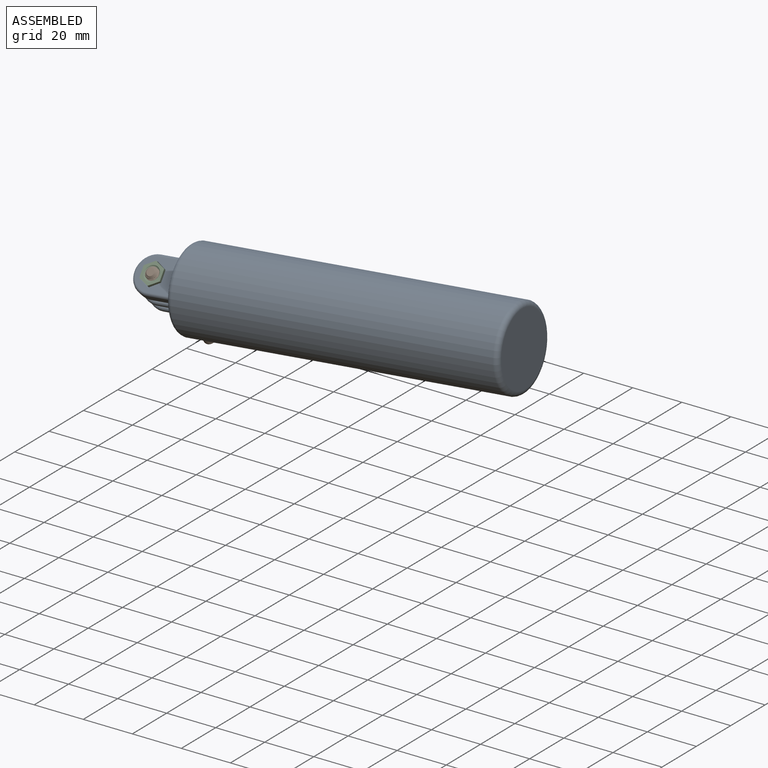
[diagram: assembled view]
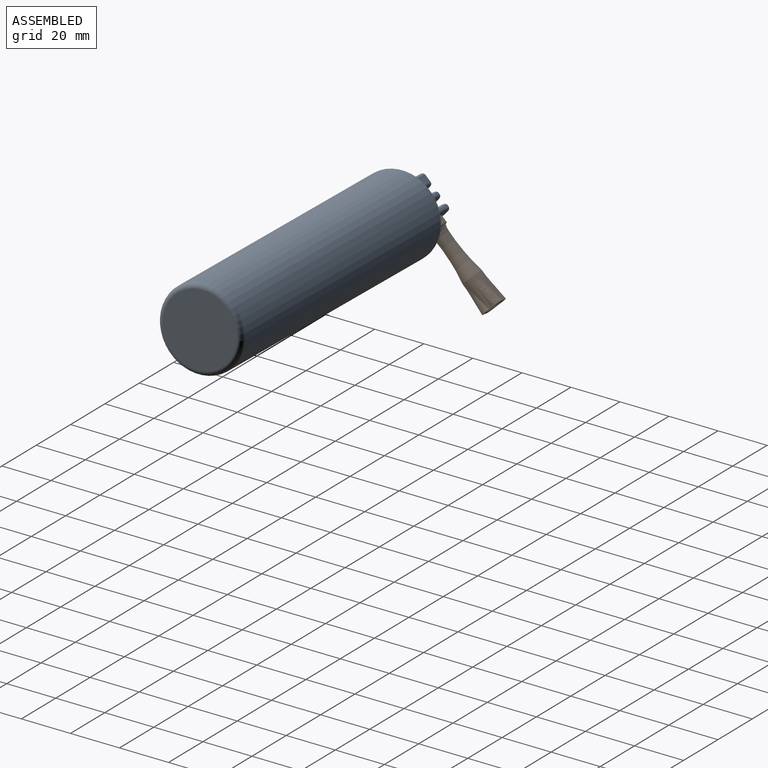
[diagram: assembled view, second angle]
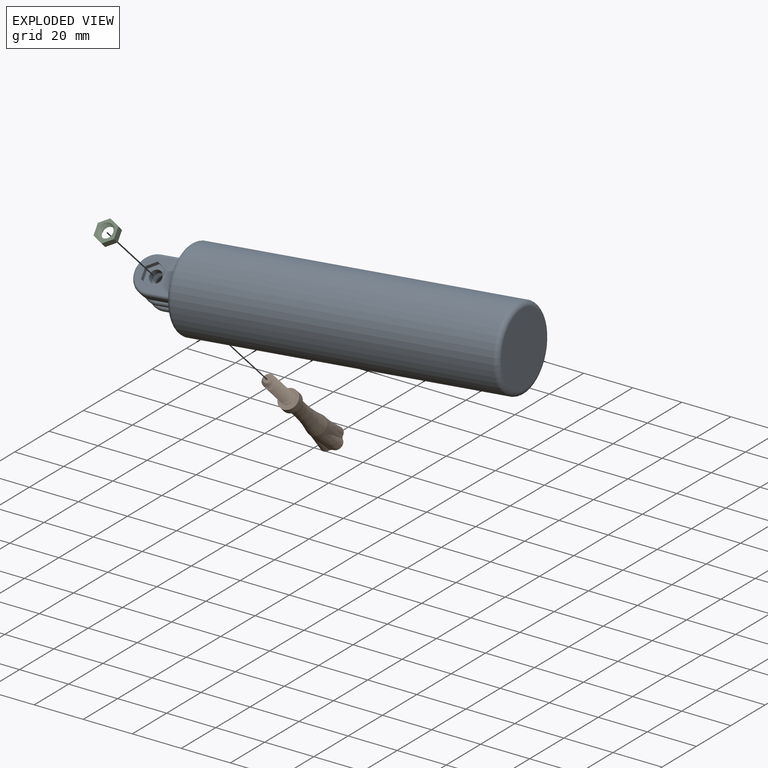
[diagram: exploded view]
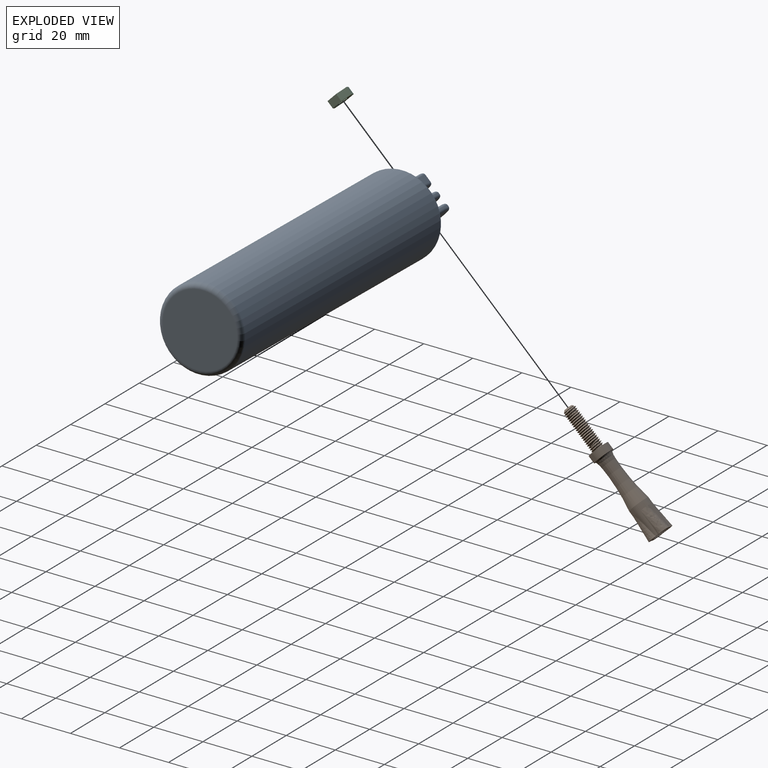
[diagram: exploded view, second angle]
ASSEMBLY  parts=3 mates=2
PART A: 80 faces, bbox 35.7x35.7x149.7 mm
  f0: plane 16.05x13.24mm, normal (1,0,0), area 133.3mm2, adj f19,f64,f65,f66,f68,f69,f70,f71
  f1: cylinder r=2.52mm len=5.05mm, axis (1,0,0), area 41.2mm2, adj f74,f79
  f2: cylinder r=16.5mm len=126mm, axis (0,0,-1), area 13062.7mm2, adj f27,f28
  f3: plane 29x29mm, normal (0,0,1), area 291.9mm2, adj f19,f20,f22,f24,f28
  f4: plane 29x29mm, normal (0,0,-1), area 660.5mm2, adj f27
  f5: plane 9.43x0.54mm, normal (0,-1,0), area 5.1mm2, adj f16,f22,f39,f44
  f6: plane 16.05x13.24mm, normal (1,0,0), area 170.4mm2, adj f26,f44,f45,f46,f75
  f7: plane 9.43x0.54mm, normal (0,1,0), area 5.1mm2, adj f16,f20,f41,f46
  f8: plane 16.05x13.24mm, normal (-1,0,0), area 170.4mm2, adj f24,f39,f40,f41,f76
  f9: plane 16.05x13.24mm, normal (-1,0,0), area 170.4mm2, adj f25,f49,f50,f51,f77
  f10: plane 9.43x0.54mm, normal (0,-1,0), area 5.1mm2, adj f17,f22,f49,f54
  f11: plane 16.05x13.24mm, normal (1,0,0), area 170.4mm2, adj f23,f54,f55,f56,f78
  f12: plane 9.43x0.54mm, normal (0,1,0), area 5.1mm2, adj f17,f20,f51,f56
  f13: plane 16.05x13.24mm, normal (-1,0,0), area 170.4mm2, adj f21,f59,f60,f61,f79
  f14: plane 9.43x3mm, normal (0,-1,0), area 28.3mm2, adj f18,f22,f59,f64
  f15: plane 9.43x3mm, normal (0,1,0), area 28.3mm2, adj f18,f20,f61,f66
  f16: cylinder r=7.62mm len=15.24mm, axis (-1,0,0), area 12.9mm2, adj f5,f7,f40,f45
  f17: cylinder r=7.62mm len=15.24mm, axis (1,0,0), area 12.9mm2, adj f10,f12,f50,f55
  f18: cylinder r=7.62mm len=15.24mm, axis (1,0,0), area 71.8mm2, adj f14,f15,f60,f65
  f19: cylinder r=2mm len=19.24mm, axis (0,1,0), area 48.4mm2, adj f0,f3,f63,f67
  f20: cylinder r=2mm len=19.16mm, axis (-1,0,0), area 32.7mm2, adj f3,f7,f12,f15,f42,f47,f52,f57
  f21: cylinder r=2mm len=17.05mm, axis (0,-1,0), area 36.3mm2, adj f13,f23,f58,f62
  f22: cylinder r=2mm len=19.16mm, axis (1,0,0), area 32.7mm2, adj f3,f5,f10,f14,f38,f43,f48,f53
  f23: cylinder r=2mm len=17.05mm, axis (0,1,0), area 36.3mm2, adj f11,f21,f53,f57
  f24: cylinder r=2mm len=19.24mm, axis (0,-1,0), area 48.4mm2, adj f3,f8,f38,f42
  f25: cylinder r=2mm len=17.05mm, axis (0,-1,0), area 36.3mm2, adj f9,f26,f48,f52
  f26: cylinder r=2mm len=17.05mm, axis (0,1,0), area 36.3mm2, adj f6,f25,f43,f47
  f27: torus R=14.5mm, axis (0,0,1), area 311.4mm2, adj f2,f4
  f28: torus R=14.5mm, axis (0,0,1), area 311.4mm2, adj f2,f3
  f29: cylinder r=2.52mm len=5.05mm, axis (1,0,0), area 34mm2, adj f77,f78
  f30: cylinder r=2.52mm len=5.05mm, axis (1,0,0), area 34mm2, adj f75,f76
  f31: plane 4.59x1.8mm, normal (0,0,-1), area 8.3mm2, adj f32,f36,f37,f71
  f32: plane 3.92x2.39mm, normal (0,0.85,-0.52), area 8.3mm2, adj f31,f33,f37,f69
  f33: plane 3.92x2.39mm, normal (0,0.85,0.52), area 8.3mm2, adj f32,f34,f37,f68
  f34: plane 4.59x1.8mm, normal (0,0,1), area 8.3mm2, adj f33,f35,f37,f70
  f35: plane 3.92x2.39mm, normal (0,-0.85,0.52), area 8.3mm2, adj f34,f36,f37,f72
  f36: plane 3.92x2.39mm, normal (0,-0.85,-0.52), area 8.3mm2, adj f31,f35,f37,f73
  f37: plane 9.37x7.84mm, normal (1,0,0), area 31.4mm2, adj f31,f32,f33,f34,f35,f36,f74
  f38: bspline ~3x3mm, area 2.1mm2, adj f22,f24,f39
  f39: cylinder r=1mm len=9.43mm, axis (0,0,-1), area 14.8mm2, adj f5,f8,f38,f40
  f40: torus R=6.62mm, axis (1,0,0), area 35.8mm2, adj f8,f16,f39,f41
  f41: cylinder r=1mm len=9.43mm, axis (0,0,1), area 14.8mm2, adj f7,f8,f40,f42
  f42: bspline ~3x3mm, area 2.1mm2, adj f20,f24,f41
  f43: bspline ~2.67x2.67mm, area 3.4mm2, adj f22,f26,f44,f48
  f44: cylinder r=1mm len=9.43mm, axis (0,0,-1), area 14.8mm2, adj f5,f6,f43,f45
  f45: torus R=6.62mm, axis (-1,0,0), area 35.8mm2, adj f6,f16,f44,f46
  f46: cylinder r=1mm len=9.43mm, axis (0,0,1), area 14.8mm2, adj f6,f7,f45,f47
  f47: bspline ~2.67x2.67mm, area 3.4mm2, adj f20,f26,f46,f52
  f48: bspline ~2.67x2.67mm, area 3.4mm2, adj f22,f25,f43,f49
  f49: cylinder r=1mm len=9.43mm, axis (0,0,1), area 14.8mm2, adj f9,f10,f48,f50
  f50: torus R=6.62mm, axis (-1,0,0), area 35.8mm2, adj f9,f17,f49,f51
  f51: cylinder r=1mm len=9.43mm, axis (0,0,-1), area 14.8mm2, adj f9,f12,f50,f52
  f52: bspline ~2.67x2.67mm, area 3.4mm2, adj f20,f25,f47,f51
  f53: bspline ~2.67x2.67mm, area 3.4mm2, adj f22,f23,f54,f58
  f54: cylinder r=1mm len=9.43mm, axis (0,0,-1), area 14.8mm2, adj f10,f11,f53,f55
  f55: torus R=6.62mm, axis (-1,0,0), area 35.8mm2, adj f11,f17,f54,f56
  f56: cylinder r=1mm len=9.43mm, axis (0,0,1), area 14.8mm2, adj f11,f12,f55,f57
  f57: bspline ~2.67x2.67mm, area 3.4mm2, adj f20,f23,f56,f62
  f58: bspline ~2.67x2.67mm, area 3.4mm2, adj f21,f22,f53,f59
  f59: cylinder r=1mm len=9.43mm, axis (0,0,1), area 14.8mm2, adj f13,f14,f58,f60
  f60: torus R=6.62mm, axis (-1,0,0), area 35.8mm2, adj f13,f18,f59,f61
  f61: cylinder r=1mm len=9.43mm, axis (0,0,-1), area 14.8mm2, adj f13,f15,f60,f62
  f62: bspline ~2.67x2.67mm, area 3.4mm2, adj f20,f21,f57,f61
  f63: bspline ~3x3mm, area 2.1mm2, adj f19,f22,f64
  f64: cylinder r=1mm len=9.43mm, axis (0,0,-1), area 14.8mm2, adj f0,f14,f63,f65
  f65: torus R=6.62mm, axis (-1,0,0), area 35.8mm2, adj f0,f18,f64,f66
  f66: cylinder r=1mm len=9.43mm, axis (0,0,1), area 14.8mm2, adj f0,f15,f65,f67
  f67: bspline ~3x3mm, area 2.1mm2, adj f19,f20,f66
  f68: cylinder r=0.2mm len=4.23mm, axis (0,0.52,-0.85), area 1.5mm2, adj f0,f33,f69,f70
  f69: cylinder r=0.2mm len=4.23mm, axis (0,-0.52,-0.85), area 1.5mm2, adj f0,f32,f68,f71
  f70: cylinder r=0.2mm len=4.82mm, axis (0,1,0), area 1.5mm2, adj f0,f34,f68,f72
  f71: cylinder r=0.2mm len=4.82mm, axis (0,-1,0), area 1.5mm2, adj f0,f31,f69,f73
  f72: cylinder r=0.2mm len=4.23mm, axis (0,0.52,0.85), area 1.5mm2, adj f0,f35,f70,f73
  f73: cylinder r=0.2mm len=4.23mm, axis (0,-0.52,0.85), area 1.5mm2, adj f0,f36,f71,f72
  f74: torus R=2.73mm, axis (1,0,0), area 5.1mm2, adj f1,f37
  f75: torus R=2.73mm, axis (-1,0,0), area 5.1mm2, adj f6,f30
  f76: torus R=2.73mm, axis (1,0,0), area 5.1mm2, adj f8,f30
  f77: torus R=2.73mm, axis (-1,0,0), area 5.1mm2, adj f9,f29
  f78: torus R=2.73mm, axis (-1,0,0), area 5.1mm2, adj f11,f29
  f79: torus R=2.73mm, axis (-1,0,0), area 5.1mm2, adj f1,f13
PART B: 23 faces, bbox 10.3x10.3x52.7 mm
  f0: plane 0.3x0.17mm, normal (0,-1,0), area 0mm2, adj f2,f3,f9
  f1: bspline ~17.33x5.71mm, area 220.6mm2, adj f2,f3,f5,f6,f9
  f2: bspline ~17.6x5.71mm, area 221.8mm2, adj f0,f1,f3,f5,f9
  f3: cylinder r=2.5mm len=16.18mm, axis (0,0,-1), area 54.3mm2, adj f0,f1,f2,f5,f6,f9
  f4: plane 3x3mm, normal (0,0,-1), area 7.1mm2, adj f5
  f5: cone r=2.5mm half-angle=45deg, axis (0,0,1), area 11mm2, adj f1,f2,f3,f4,f6
  f6: cone r=2.5mm half-angle=45deg, axis (0,0,1), area 0mm2, adj f1,f3,f5
  f7: cylinder r=4mm len=8mm, axis (0,0,-1), area 75.4mm2, adj f8,f9
  f8: plane 8x8mm, normal (0,0,1), area 9.9mm2, adj f7,f10
  f9: plane 8.18x8.18mm, normal (0,0,-1), area 35mm2, adj f0,f1,f2,f3,f7
  f10: revolved ~19.92x8mm, area 390.7mm2, adj f8,f11
  f11: cylinder r=4mm len=8mm, axis (0,0,-1), area 58.3mm2, adj f10,f13,f14,f15,f16,f17,f18,f19
  f12: plane 10.16x10.16mm, normal (0,0,1), area 41mm2, adj f13,f14,f15,f16,f17,f18,f19,f20
  f13: bspline ~10x2.67mm, area 20.4mm2, adj f11,f12,f14,f20
  f14: bspline ~10x4.93mm, area 48.4mm2, adj f11,f12,f13,f15
  f15: bspline ~10x2.67mm, area 20.4mm2, adj f11,f12,f14,f16
  f16: bspline ~10x4.93mm, area 48.4mm2, adj f11,f12,f15,f17
  f17: bspline ~10x2.67mm, area 20.4mm2, adj f11,f12,f16,f18
  f18: bspline ~10x4.93mm, area 48.4mm2, adj f11,f12,f17,f19
  f19: bspline ~10x2.67mm, area 20.4mm2, adj f11,f12,f18,f20
  f20: bspline ~10x4.93mm, area 48.4mm2, adj f11,f12,f13,f19
  f21: cone r=2.88mm half-angle=10deg, axis (0,0,1), area 136.8mm2, adj f12,f22
  f22: plane 1.7x1.7mm, normal (0,0,1), area 2.3mm2, adj f21
PART C: 14 faces, bbox 9.3x8x3.6 mm
  f0: plane 4.62x3mm, normal (0,1,0), area 13.9mm2, adj f1,f5,f7,f8
  f1: plane 4x3mm, normal (-0.87,0.5,0), area 13.9mm2, adj f0,f2,f7,f8
  f2: plane 4x3mm, normal (-0.87,-0.5,0), area 13.9mm2, adj f1,f3,f7,f8
  f3: plane 4.62x3mm, normal (0,-1,0), area 13.9mm2, adj f2,f4,f7,f8
  f4: plane 4x3mm, normal (0.87,-0.5,0), area 13.9mm2, adj f3,f5,f7,f8
  f5: plane 4x3mm, normal (0.87,0.5,0), area 13.9mm2, adj f0,f4,f7,f8
  f6: cylinder r=2.5mm len=5mm, axis (0,0,-1), area 1.2mm2, adj f9,f10,f11,f12,f13
  f7: plane 9.27x8.03mm, normal (0,0,1), area 26.7mm2, adj f0,f1,f2,f3,f4,f5,f10,f12
  f8: plane 9.24x8mm, normal (0,0,-1), area 27.2mm2, adj f0,f1,f2,f3,f4,f5,f9
  f9: cone r=3mm half-angle=45deg, axis (0,0,-1), area 9.9mm2, adj f6,f8,f11,f12
  f10: cone r=2.5mm half-angle=45deg, axis (0,0,1), area 4.7mm2, adj f6,f7,f12,f13
  f11: plane 0.68x0.61mm, normal (-1,0,0), area 0.2mm2, adj f6,f9,f12,f13
  f12: bspline ~7.35x6.37mm, area 44.5mm2, adj f6,f7,f9,f10,f11,f13
  f13: bspline ~7.35x6.37mm, area 39.6mm2, adj f6,f7,f10,f11,f12
PLACE A rot(axis=(0.4,-0.86,-0.32),100.9deg) t=(109.15,29.22,73)mm
PLACE B rot(axis=(-0.17,-0.91,-0.38),171.5deg) t=(-31.63,12.85,69.95)mm
PLACE C rot(axis=(0.33,-0.37,0.87),103.5deg) t=(-31.63,15.79,67.12)mm
MATE fastened A.f55 <-> C.f6  axis (0,-0.72,0.69) through (-31.63,15.79,67.12)mm
MATE cylindrical B.f3 <-> A.f40  axis (0,-0.72,0.69) through (-31.63,12.85,69.95)mm
